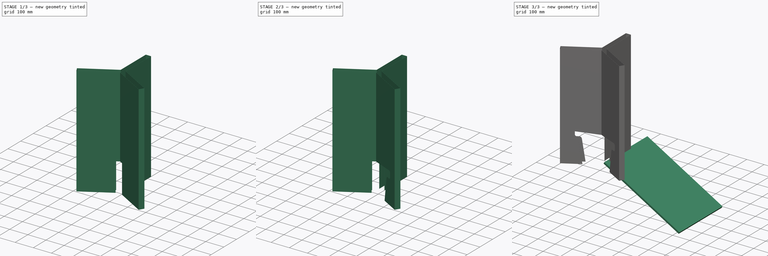
[diagram: build sequence overview — one tinted view per stage of 3, left to right]
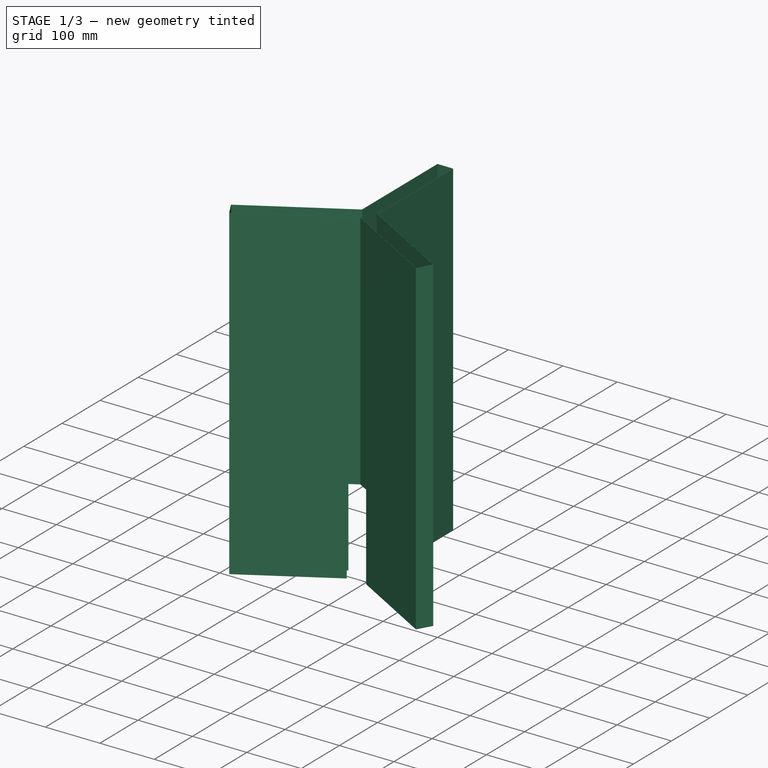
[diagram: stage 1 of 3 — iso view after this stage's code; geometry added in this stage tinted green]
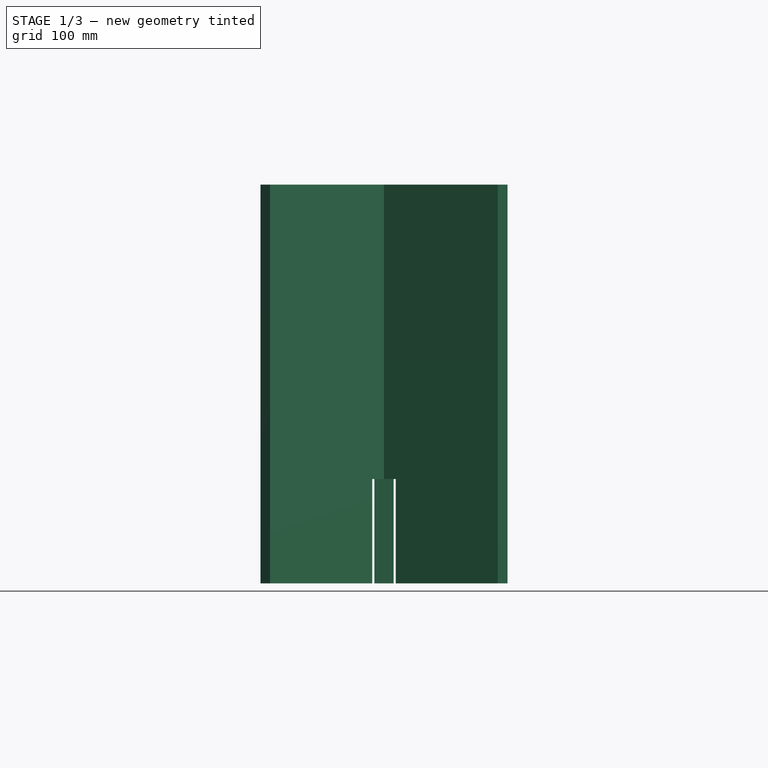
[diagram: stage 1 of 3 — front view after this stage's code; geometry added in this stage tinted green]
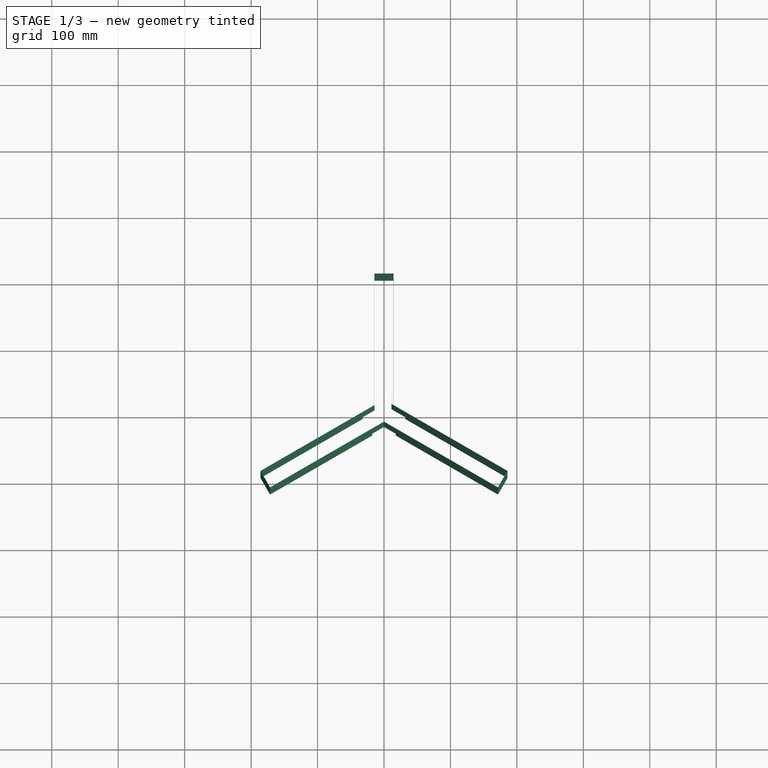
[diagram: stage 1 of 3 — top view after this stage's code; geometry added in this stage tinted green]
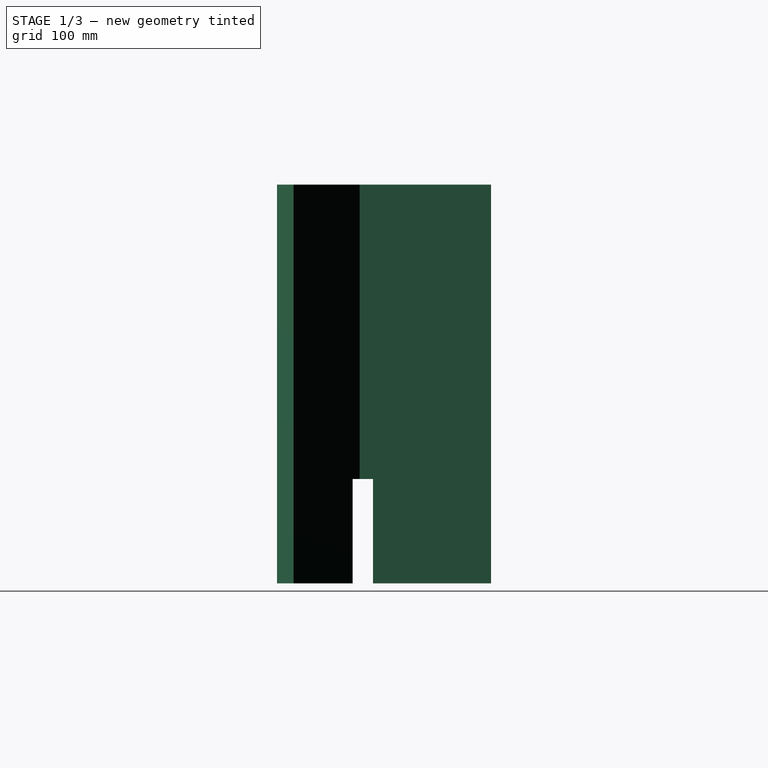
[diagram: stage 1 of 3 — right view after this stage's code; geometry added in this stage tinted green]
FCSTD DOCUMENT  (FreeCAD 0.21R32532 (Git))
Label: composit_stand4-small
License: All rights reserved
LicenseURL: http://en.wikipedia.org/wiki/All_rights_reserved
objects: PartDesign::SubShapeBinder×4, Sketcher::SketchObject×4, PartDesign::Pocket×3, PartDesign::FeaturePython×1, PartDesign::Plane×1, Part::Extrusion×1, Part::Part2DObjectPython×1, PartDesign::CoordinateSystem×1, PartDesign::Mirrored×1, PartDesign::Body×1, Part::FeaturePython×1
note: 21 computed .brp shape members not serialized (recipe doc carries the construction recipe); baked Part::Feature solids carry a one-line shape summary decoded from their .brp
EXTERNAL_REF file=composit_stand4-small-main-sketches.FCStd obj=Sketch
EXTERNAL_REF file=composit-properties.FCStd obj=Spreadsheet
EXTERNAL_REF file=composit_stand4-small-main-sketches.FCStd obj=Spreadsheet
EXTERNAL_REF file=composit_stand-main-sketches.FCStd obj=Sketch
EXTERNAL_REF file=module.FCStd obj=Sketch
EXTERNAL_REF file=module.FCStd obj=Spreadsheet

FEATURE [PartDesign::SubShapeBinder] Binder
  BindCopyOnChange = 0
  BindMode = 0
  ClaimChildren = true
  Context = -> Body [BaseBend.Binder.]
  Fuse = false
  MakeFace = true
  OffsetFill = false
  OffsetIntersection = false
  OffsetJoinType = 0
  OffsetOpenResult = false
  PartialLoad = false
  Relative = false
  Support = -> [<external composit_stand4-small-main-sketches.FCStd>#Sketch]
  _Version = 2
  expr: Support = composit_stand4_small_main_sketches#<<Sketch>>._self
FEATURE [PartDesign::FeaturePython] BaseBend  # WARN: FeaturePython — macro-defined, semantics opaque (R4)
  BendSide = 1
  BendSketch = -> Binder
  MidPlane = false
  Reverse = false
  length = 600
  radius = 0.1
  thickness = 0.3
  expr: length = <<composit_stand4-small-main-sketches>>#<<Properties>>.total_height
  expr: radius = <<composit-properties>>#<<Properties>>.bend_r
  expr: thickness = <<composit-properties>>#<<Properties>>.al_thickness
FEATURE [Sketcher::SketchObject] Sketch
  FullyConstrained = false
  MapMode = 5
  sketch-geometry (13):
    g0: LineSegment StartX=0 StartY=0 StartZ=0 EndX=0 EndY=157 EndZ=0
    g1: LineSegment StartX=149.654 StartY=161.623 StartZ=0 EndX=149.654 EndY=141.568 EndZ=0
    g2: LineSegment StartX=139.654 StartY=131.568 StartZ=0 EndX=125.494 EndY=131.568 EndZ=0
    g3: LineSegment StartX=110.703 StartY=119.062 StartZ=0 EndX=90.6286 EndY=0 EndZ=0
    g4: LineSegment StartX=90.6286 StartY=0 StartZ=0 EndX=0 EndY=0 EndZ=0
    g5: ArcOfCircle CenterX=125.494 CenterY=116.568 CenterZ=0 NormalX=0 NormalY=0 NormalZ=1 AngleXU=0 Radius=15 StartAngle=1.5708 EndAngle=2.97456
    g6: GeomPoint X=112.811 Y=131.568 Z=0
    g7: ArcOfCircle CenterX=139.654 CenterY=141.568 CenterZ=0 NormalX=0 NormalY=0 NormalZ=1 AngleXU=0 Radius=10 StartAngle=4.71239 EndAngle=6.28319
    g8: GeomPoint X=149.654 Y=131.568 Z=0
    g9: ArcOfCircle CenterX=139.654 CenterY=161.623 CenterZ=0 NormalX=0 NormalY=0 NormalZ=1 AngleXU=0 Radius=10 StartAngle=1e-16 EndAngle=1.67552
    g10: GeomPoint X=149.654 Y=157 Z=0
    g11: LineSegment StartX=0 StartY=157 StartZ=0 EndX=4.95426 EndY=157 EndZ=0
    g12: LineSegment StartX=4.95426 StartY=157 StartZ=0 EndX=138.609 EndY=171.568 EndZ=0
  constraints (27):
    c: Coincident(g-1,g0)
    c: PointOnObject(g0,g-2)
    c: Coincident(g0,g11)
    c: Vertical(g1)
    c: Horizontal(g2)
    c: PointOnObject(g3,g-1)
    c: Coincident(g3,g4)
    c: Coincident(g4,g0)
    c: PointOnObject(g6,g3)
    c: PointOnObject(g6,g2)
    c: Tangent(g3,g5) = -1.5708
    c: Tangent(g2,g5) = -1.5708
    c: PointOnObject(g8,g2)
    c: PointOnObject(g8,g1)
    c: Tangent(g2,g7) = 1.5708
    c: Tangent(g1,g7) = 1.5708
    c: PointOnObject(g10,g1)
    c: Tangent(g1,g9) = 1.5708
    c: Coincident(g12,g9) = 1.5708
    c: DistanceY(g0,g0) = 157  'min_height'
    c: Equal(g7,g9)
    c: Diameter(g9) = 20
    c: Diameter(g5) = 30
    c: DistanceY(g2,g12) = 40
    c: Coincident(g11,g12)
    c: PointOnObject(g10,g11)
    c: Horizontal(g11)
FEATURE [PartDesign::SubShapeBinder] Binder002
  BindCopyOnChange = 0
  BindMode = 0
  ClaimChildren = true
  Context = -> Body [Binder002.]
  Fuse = false
  MakeFace = true
  OffsetFill = false
  OffsetIntersection = false
  OffsetJoinType = 0
  OffsetOpenResult = false
  PartialLoad = false
  Placement = pos=(0,-16.7432,0) rot=(0.935113,-0.250563,-0.250563;1.63783rad)
  Relative = false
  Support = -> [Sketch]
  _Version = 2
  expr: .Placement.Base.y = -<<composit_stand-main-sketches>>#Sketch.Constraints.connection_offset
FEATURE [Sketcher::SketchObject] Sketch001
  FullyConstrained = true
  MapMode = 5
  Support = -> [XY_Plane]
  sketch-geometry (6):
    g0: LineSegment StartX=-50 StartY=28.8675 StartZ=0 EndX=50 EndY=28.8675 EndZ=0
    g1: LineSegment StartX=50 StartY=28.8675 StartZ=0 EndX=0 EndY=-57.735 EndZ=0
    g2: LineSegment StartX=0 StartY=-57.735 StartZ=0 EndX=-50 EndY=28.8675 EndZ=0
    g3: LineSegment StartX=-50 StartY=28.8675 StartZ=0 EndX=0 EndY=0 EndZ=0
    g4: LineSegment StartX=0 StartY=0 StartZ=0 EndX=50 EndY=28.8675 EndZ=0
    g5: LineSegment StartX=0 StartY=0 StartZ=0 EndX=0 EndY=-57.735 EndZ=0
  constraints (15):
    c: Horizontal(g0)
    c: Coincident(g0,g1)
    c: PointOnObject(g1,g-2)
    c: Coincident(g1,g2)
    c: Coincident(g2,g0)
    c: Coincident(g0,g3)
    c: Coincident(g3,g-1)
    c: Coincident(g3,g4)
    c: Coincident(g4,g0)
    c: Coincident(g3,g5)
    c: Coincident(g5,g1)
    c: Equal(g2,g0)
    c: Equal(g0,g1)
    c: Equal(g5,g4)
    c: DistanceX(g0,g0) = 100
FEATURE [PartDesign::Pocket] Pocket
  BaseFeature = -> BaseBend
  Direction = (0,0,-1)
  Length = 157
  Length2 = 5
  Profile = -> Sketch001
  ReferenceAxis = -> Sketch001 [N_Axis]
  Reversed = true
  Type = 0
  expr: Length = Sketch.Constraints.min_height
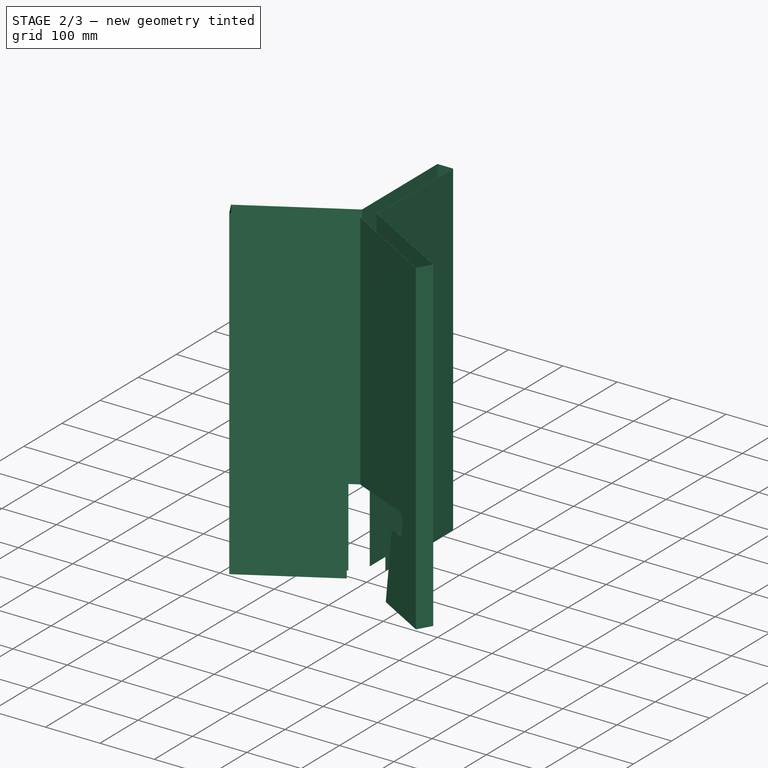
[diagram: stage 2 of 3 — iso view after this stage's code; geometry added in this stage tinted green]
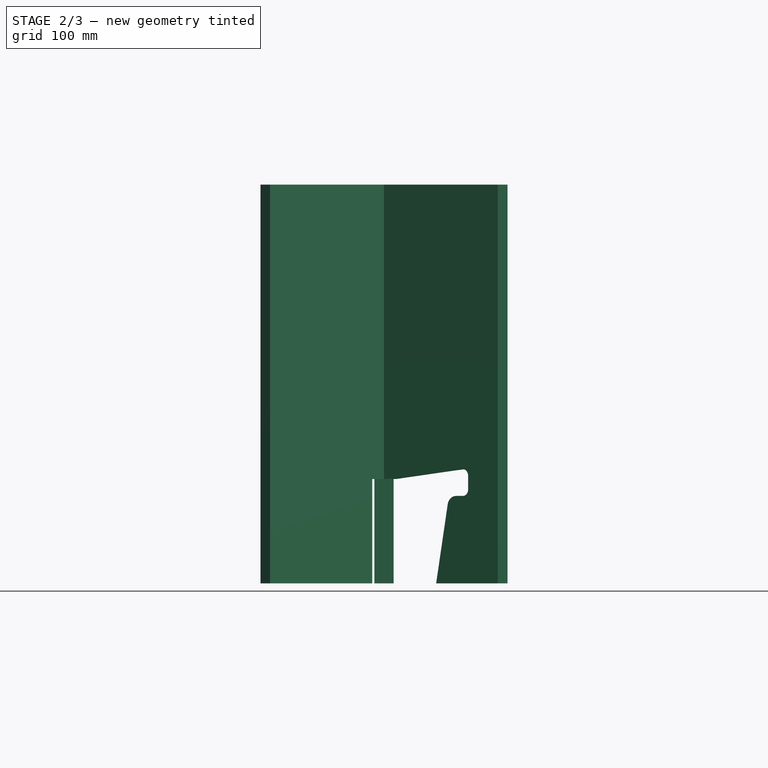
[diagram: stage 2 of 3 — front view after this stage's code; geometry added in this stage tinted green]
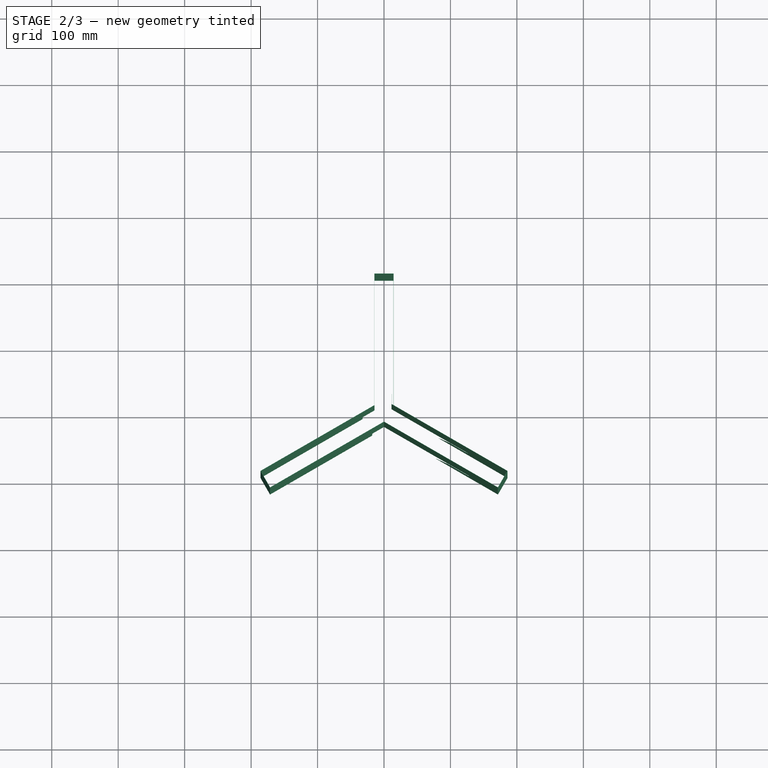
[diagram: stage 2 of 3 — top view after this stage's code; geometry added in this stage tinted green]
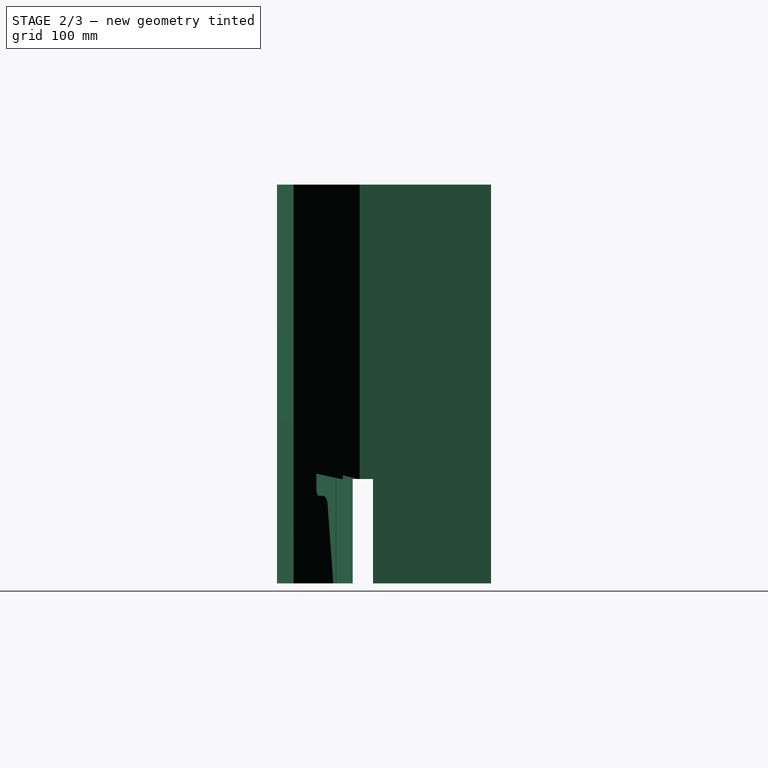
[diagram: stage 2 of 3 — right view after this stage's code; geometry added in this stage tinted green]
FEATURE [PartDesign::Pocket] Pocket001
  BaseFeature = -> Pocket
  Direction = (0.5,0.866025,2e-16)
  Length = 5
  Length2 = 5
  Midplane = true
  Profile = -> Binder002
  Refine = true
  Type = 0
FEATURE [Part::Part2DObjectPython] Shape2DView  # Draft 2D object (typed FeaturePython)
  AutoUpdate = true
  Base = -> Sketch
  Clip = false
  FuseArch = false
  HiddenLines = false
  InPlace = true
  OnlySolids = false
  Projection = (0.5,0,0.866025)
  ProjectionMode = 0
  SegmentLength = 0.05
  Tessellation = false
  VisibleOnly = false
FEATURE [PartDesign::SubShapeBinder] Binder003
  BindCopyOnChange = 0
  BindMode = 0
  ClaimChildren = false
  Context = -> Body [Binder003.]
  Fuse = false
  MakeFace = true
  OffsetFill = false
  OffsetIntersection = false
  OffsetJoinType = 0
  OffsetOpenResult = false
  PartialLoad = false
  Placement = pos=(14.5,8.37158,0) rot=(0.935113,-0.250563,-0.250563;1.63783rad)
  Relative = true
  Support = -> [Shape2DView]
  _Version = 2
  expr: Placement = <<petal_connection>>.Placement * placement(vector(0; 0; 0); rotation(-60; 0; 90))
FEATURE [PartDesign::CoordinateSystem] Local_CS  label="petal_connection"
  AttacherType = Attacher::AttachEngine3D
  AttachmentOffset = pos=(14.5,8.37158,0) rot=(0,0,1;0.523599rad)
  MapMode = 5
  Placement = pos=(14.5,8.37158,0) rot=(0,0,1;0.523599rad)
  Support = -> [XY_Plane]
  expr: AttachmentOffset = placement(vector(0; 0; 0); rotation(30; 0; 0)) * placement(vector(<<composit_stand4-small-main-sketches>>#<<Sketch>>.Constraints.petal_side_connection; 0; 0); rotation(0; 0; 0))
FEATURE [PartDesign::Pocket] Pocket002
  BaseFeature = -> Pocket001
  Direction = (0.5,0.866025,-1e-16)
  Length = 5
  Length2 = 5
  Profile = -> Binder003
  Reversed = true
  Type = 0
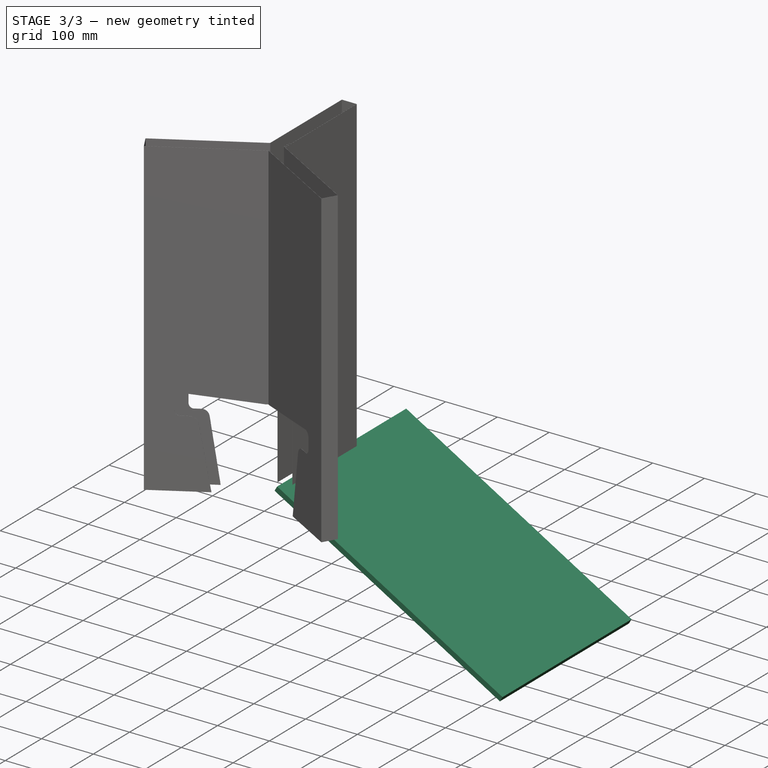
[diagram: stage 3 of 3 — iso view after this stage's code; geometry added in this stage tinted green]
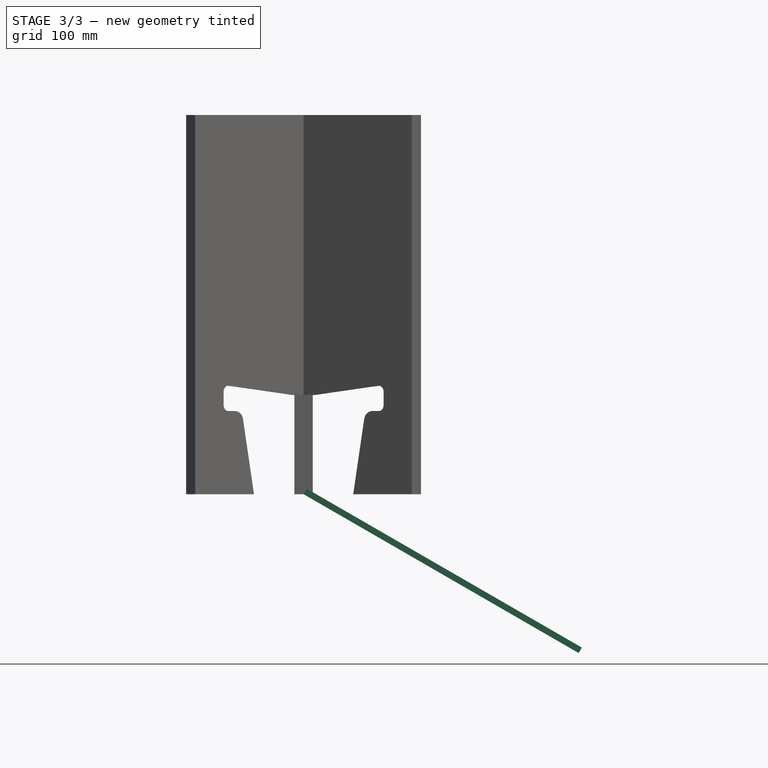
[diagram: stage 3 of 3 — front view after this stage's code; geometry added in this stage tinted green]
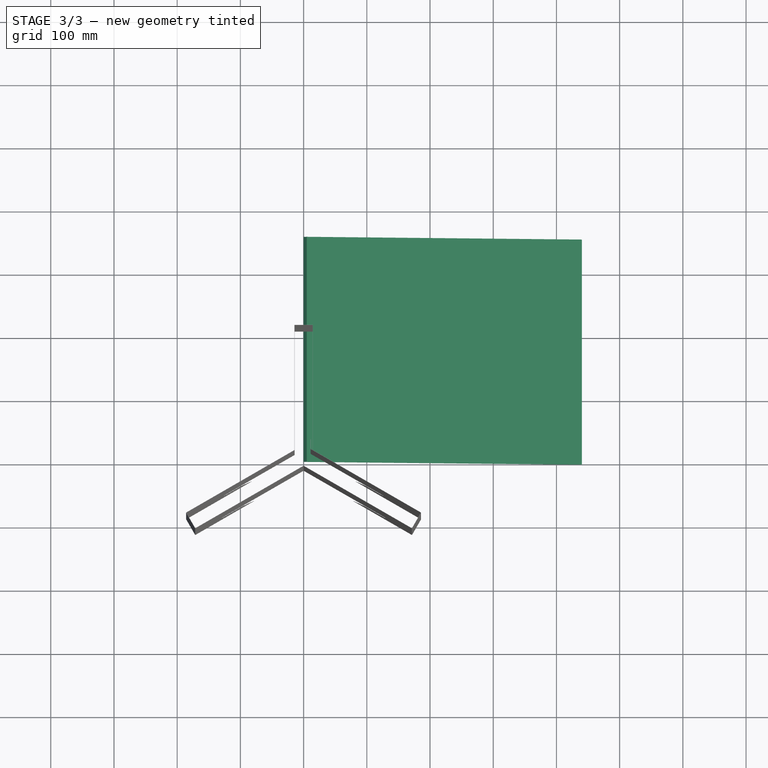
[diagram: stage 3 of 3 — top view after this stage's code; geometry added in this stage tinted green]
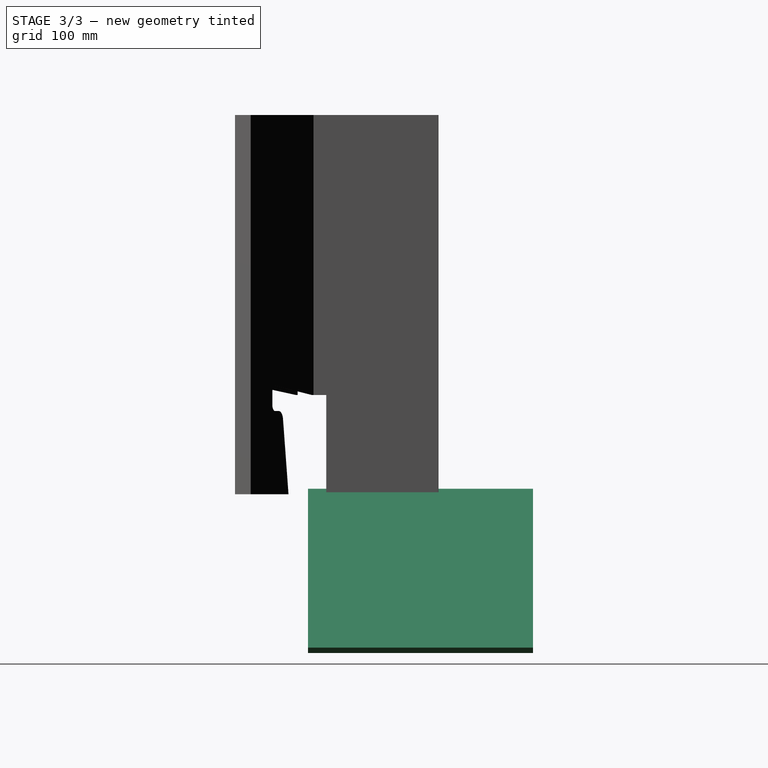
[diagram: stage 3 of 3 — right view after this stage's code; geometry added in this stage tinted green]
FEATURE [Sketcher::SketchObject] Sketch002
  AttachmentOffset = pos=(0,0,0) rot=(0,1,0;-0.523599rad)
  FullyConstrained = false
  MapMode = 5
  Placement = pos=(0,0,0) rot=(-0.935113,0.250563,0.250563;4.64535rad)
  Support = -> [XZ_Plane]
  sketch-geometry (1):
    g0: Circle CenterX=39.9418 CenterY=116.846 CenterZ=0 NormalX=0 NormalY=0 NormalZ=1 AngleXU=0 Radius=35.4797
FEATURE [PartDesign::Plane] DatumPlane
  Length = 2303.68
  Placement = pos=(0,0,0) rot=(0,1,0;0.523599rad)
  ResizeMode = 0
  Width = 1776.61
FEATURE [Sketcher::SketchObject] Sketch003
  FullyConstrained = false
  MapMode = 5
  Placement = pos=(0,0,0) rot=(0,1,0;0.523599rad)
  Support = -> [DatumPlane]
  sketch-geometry (4):
    g0: LineSegment StartX=0 StartY=0 StartZ=0 EndX=502.547 EndY=0 EndZ=0
    g1: LineSegment StartX=502.547 StartY=0 StartZ=0 EndX=502.547 EndY=356.028 EndZ=0
    g2: LineSegment StartX=502.547 StartY=356.028 StartZ=0 EndX=0 EndY=356.028 EndZ=0
    g3: LineSegment StartX=0 StartY=356.028 StartZ=0 EndX=0 EndY=0 EndZ=0
  constraints (9):
    c: Coincident(g0,g1)
    c: Coincident(g1,g2)
    c: Coincident(g2,g3)
    c: Coincident(g3,g0)
    c: Horizontal(g0)
    c: Horizontal(g2)
    c: Vertical(g1)
    c: Vertical(g3)
    c: Coincident(g0,g-1)
FEATURE [Part::Extrusion] Extrude
  Base = -> Sketch003
  Dir = (0.5,0,0.866025)
  DirMode = 2
  FaceMakerClass = Part::FaceMakerBullseye
  LengthFwd = 10
  LengthRev = 0
  Solid = true
  Symmetric = false
FEATURE [PartDesign::Mirrored] Mirrored
  BaseFeature = -> Pocket002
  MirrorPlane = -> YZ_Plane
  Originals = -> [Pocket001,Pocket002]
FEATURE [PartDesign::Body] Body  label="Body_material_0.30ansi"
  Group = -> [Binder,BaseBend,Binder002,Sketch001,Pocket,Pocket001,Sketch002,Binder003,Local_CS,Pocket002,Mirrored]
  Origin = -> Origin
  Tip = -> Mirrored
FEATURE [PartDesign::SubShapeBinder] Binder004
  BindCopyOnChange = 0
  BindMode = 0
  ClaimChildren = false
  Context = -> Body [Binder004.]
  Fuse = false
  MakeFace = true
  OffsetFill = false
  OffsetIntersection = false
  OffsetJoinType = 0
  OffsetOpenResult = false
  PartialLoad = false
  Relative = false
  Support = -> [<external module.FCStd>#Sketch]
  _Version = 2
  expr: Support = module#<<module_holes>>._self
FEATURE [Part::FeaturePython] Array  # Draft array (typed FeaturePython)
  AlwaysSyncPlacement = false
  Angle = 360
  ArrayType = 0
  Axis = (0,0,1)
  Base = -> Binder004
  Center = (0,0,0)
  Count = 6
  ExpandArray = false
  Fuse = false
  IntervalAxis = (0,0,0)
  IntervalX = (100,0,0)
  IntervalY = (0,80,0)
  IntervalZ = (0,0,100)
  NumberCircles = 3
  NumberPolar = 5
  NumberX = 1
  NumberY = 6
  NumberZ = 1
  PlacementList = 6 placements: arithmetic series from (0,0,0) step (0,80,0) to (0,400,0)
  RadialDistance = 50
  ScaleList = (6) [(1,1,1),(1,1,1),(1,1,1),(1,1,1),(1,1,1),(1,1,1)]
  Symmetry = 1
  TangentialDistance = 25
  expr: .IntervalY.y = module#<<Properties>>.module_fixture_distance_y
  expr: NumberY = composit_stand4_small_main_sketches#<<Properties>>.NumberOfModules
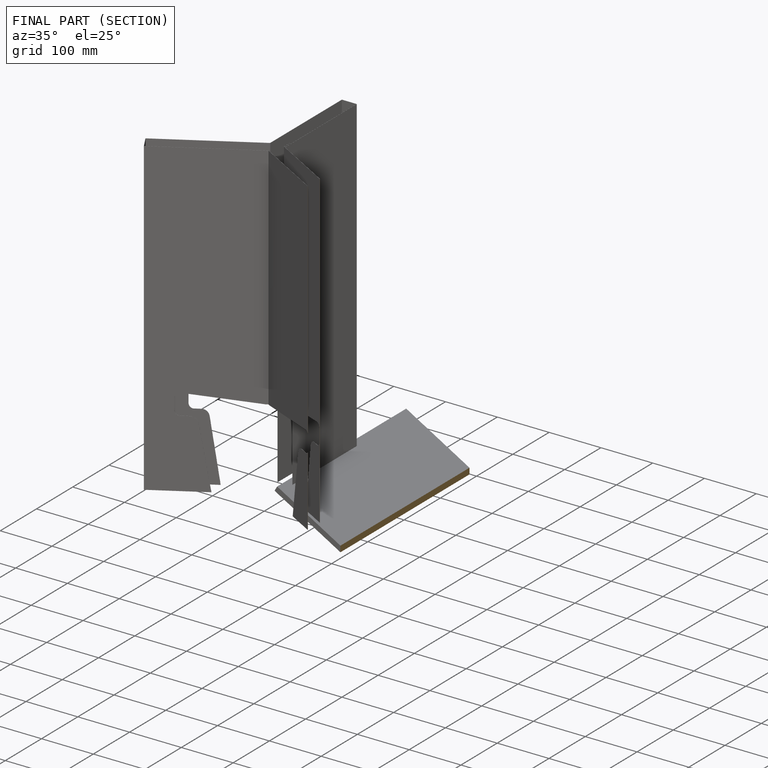
[diagram: finished part — half-section view (interior)]
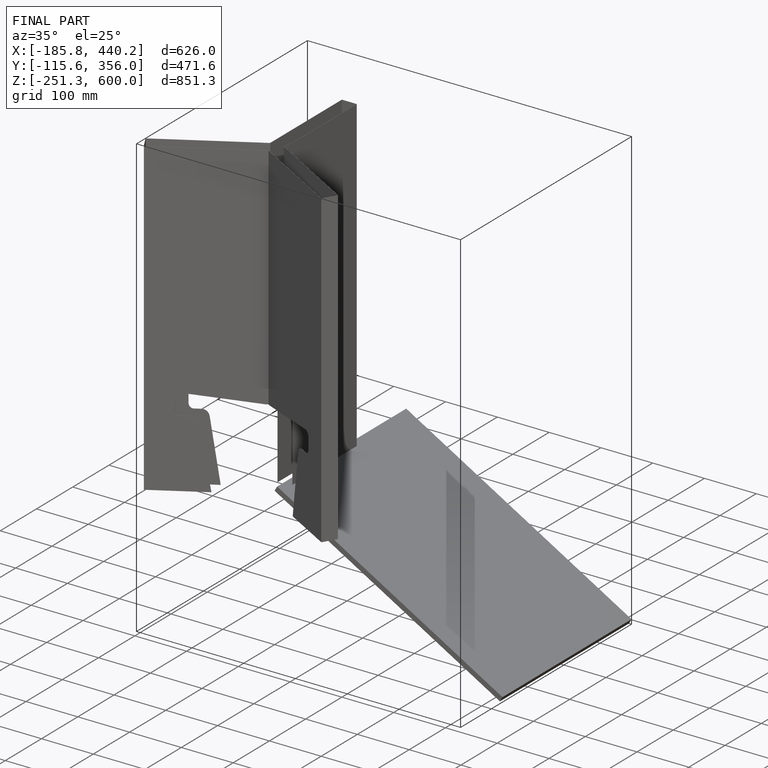
[diagram: finished part — iso view with bounding-box wireframe]
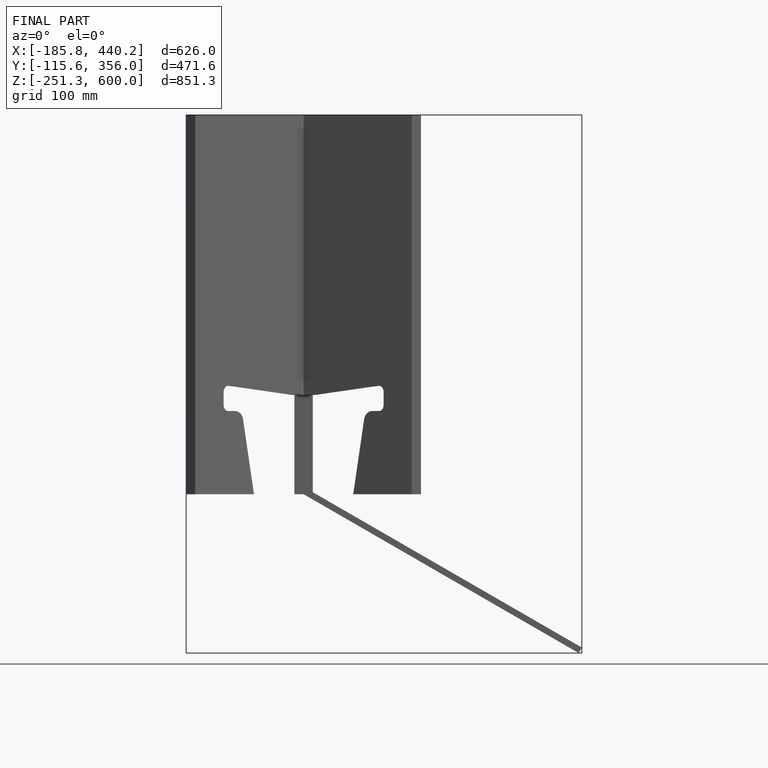
[diagram: finished part — front view with bounding-box wireframe]
